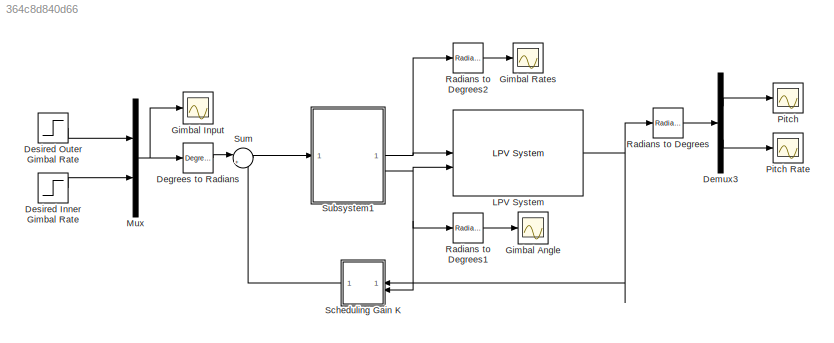
MODEL slx_364c8d840d66
KIND model
CONFIG AbsTol = auto
CONFIG EnableMultiTasking = off
CONFIG FixedStep = auto
CONFIG MaxStep = auto
CONFIG MinStep = auto
CONFIG RelTol = 1e-3
CONFIG SampleTimeConstraint = Unconstrained
CONFIG SolverName = VariableStepAuto
CONFIG StartTime = 0.0
CONFIG StopTime = tf
BLOCK [Reference] Degrees to Radians  REF=simulink_extras/Transformations/Degrees to
Radians
  SourceBlock = simulink_extras/Transformations/Degrees to\nRadians
  SourceType = DegreesToRadians
BLOCK [Demux] Demux3
  Outputs = 2
BLOCK [Step] Desired Inner Gimbal Rate
  After = 0
  SampleTime = 0
BLOCK [Step] Desired Outer Gimbal Rate
  After = 0
  SampleTime = 0
BLOCK [Scope] Gimbal Angle
  Floating = off
  NumInputPorts = 1
  ScopeSpecificationString = Simulink.scopes.TimeScopeBlockCfg('CurrentConfiguration', extmgr.ConfigurationSet(extmgr.Configuration('Core','General UI',true),extmgr.Configuration('Core','Source UI',true),extmgr.Configuration('Sources','WiredSimulink',true,'DataLoggingVariableName','gamma_output','DataLogging',true,'DataLoggingSaveFormat','StructureWithTime'),extmgr.Configuration('Visuals','Time Domain',true,'SerializedDisplay...<+1681ch>
BLOCK [Scope] Gimbal Input
  Floating = off
  NumInputPorts = 1
  ScopeSpecificationString = Simulink.scopes.TimeScopeBlockCfg('CurrentConfiguration', extmgr.ConfigurationSet(extmgr.Configuration('Core','General UI',true),extmgr.Configuration('Core','Source UI',true),extmgr.Configuration('Sources','WiredSimulink',true,'DataLoggingVariableName','Input','DataLogging',true,'DataLoggingSaveFormat','StructureWithTime'),extmgr.Configuration('Visuals','Time Domain',true,'SerializedDisplays',{str...<+1656ch>
BLOCK [Scope] Gimbal Rates
  Floating = off
  NumInputPorts = 1
  ScopeSpecificationString = Simulink.scopes.TimeScopeBlockCfg('CurrentConfiguration', extmgr.ConfigurationSet(extmgr.Configuration('Core','General UI',true),extmgr.Configuration('Core','Source UI',true),extmgr.Configuration('Sources','WiredSimulink',true,'DataLoggingVariableName','gamma_output_rates','DataLogging',true,'DataLoggingSaveFormat','StructureWithTime'),extmgr.Configuration('Visuals','Time Domain',true,'SerializedD...<+1680ch>
BLOCK [Reference] LPV System  REF=cstblocks/Linear Parameter Varying/LPV System
  SourceBlock = cstblocks/Linear Parameter Varying/LPV System
  SourceType = LPV Block
BLOCK [Mux] Mux
  DisplayOption = bar
  Inputs = 2
BLOCK [Scope] Pitch
  Floating = off
  NumInputPorts = 1
  ScopeSpecificationString = Simulink.scopes.TimeScopeBlockCfg('CurrentConfiguration', extmgr.ConfigurationSet(extmgr.Configuration('Core','General UI',true),extmgr.Configuration('Core','Source UI',true),extmgr.Configuration('Sources','WiredSimulink',true,'DataLoggingVariableName','Attitude_Angles','DataLogging',true,'DataLoggingSaveFormat','StructureWithTime'),extmgr.Configuration('Visuals','Time Domain',true,'SerializedDisp...<+1658ch>
BLOCK [Scope] Pitch Rate
  Floating = off
  NumInputPorts = 1
  ScopeSpecificationString = Simulink.scopes.TimeScopeBlockCfg('CurrentConfiguration', extmgr.ConfigurationSet(extmgr.Configuration('Core','General UI',true),extmgr.Configuration('Core','Source UI',true),extmgr.Configuration('Sources','WiredSimulink',true,'DataLoggingVariableName','Attitude_Angles_Rates','DataLogging',true,'DataLoggingSaveFormat','StructureWithTime'),extmgr.Configuration('Visuals','Time Domain',true,'Serializ...<+1644ch>
BLOCK [Reference] Radians to Degrees  REF=simulink_extras/Transformations/Radians
to Degrees
  SourceBlock = simulink_extras/Transformations/Radians\nto Degrees
  SourceType = RadiansToDegrees
BLOCK [Reference] Radians to Degrees1  REF=simulink_extras/Transformations/Radians
to Degrees
  SourceBlock = simulink_extras/Transformations/Radians\nto Degrees
  SourceType = RadiansToDegrees
BLOCK [Reference] Radians to Degrees2  REF=simulink_extras/Transformations/Radians
to Degrees
  SourceBlock = simulink_extras/Transformations/Radians\nto Degrees
  SourceType = RadiansToDegrees
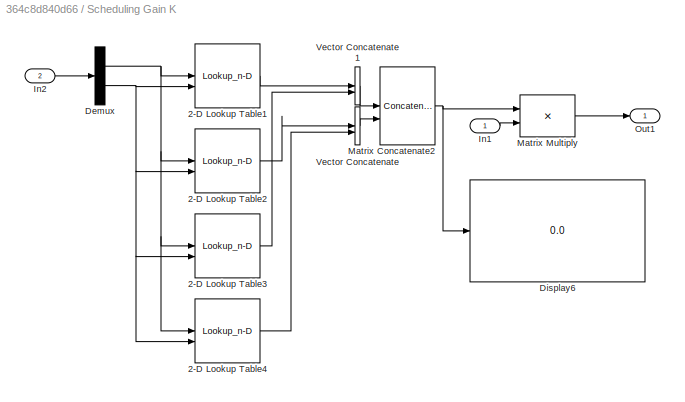
BLOCK [SubSystem] Scheduling Gain K
BLOCK [Lookup_n-D] Scheduling Gain K/2-D Lookup Table1
  BreakpointsForDimension1 = p1
  BreakpointsForDimension2 = p2
  InputPortMap = u0,u1
  InternalRulePriority = Speed
  RndMeth = Simplest
  Table = K1
BLOCK [Lookup_n-D] Scheduling Gain K/2-D Lookup Table2
  BreakpointsForDimension1 = p1
  BreakpointsForDimension2 = p2
  InputPortMap = u0,u1
  InternalRulePriority = Speed
  RndMeth = Simplest
  Table = K2
BLOCK [Lookup_n-D] Scheduling Gain K/2-D Lookup Table3
  BreakpointsForDimension1 = p1
  BreakpointsForDimension2 = p2
  InputPortMap = u0,u1
  InternalRulePriority = Speed
  RndMeth = Simplest
  Table = K3
BLOCK [Lookup_n-D] Scheduling Gain K/2-D Lookup Table4
  BreakpointsForDimension1 = p1
  BreakpointsForDimension2 = p2
  InputPortMap = u0,u1
  InternalRulePriority = Speed
  RndMeth = Simplest
  Table = K4
BLOCK [Demux] Scheduling Gain K/Demux
  Outputs = 2
BLOCK [Display] Scheduling Gain K/Display6
  Decimation = 1
BLOCK [Inport] Scheduling Gain K/In1
BLOCK [Inport] Scheduling Gain K/In2
  Port = 2
BLOCK [Concatenate] Scheduling Gain K/Matrix Concatenate2
  ConcatenateDimension = 2
  Mode = Multidimensional array
BLOCK [Product] Scheduling Gain K/Matrix Multiply
  Multiplication = Matrix(*)
BLOCK [Outport] Scheduling Gain K/Out1
BLOCK [Concatenate] Scheduling Gain K/Vector Concatenate
BLOCK [Concatenate] Scheduling Gain K/Vector Concatenate1
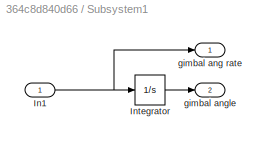
BLOCK [SubSystem] Subsystem1
BLOCK [Inport] Subsystem1/In1
BLOCK [Integrator] Subsystem1/Integrator
  InitialCondition = [0,0]
BLOCK [Outport] Subsystem1/gimbal ang rate
BLOCK [Outport] Subsystem1/gimbal angle
  Port = 2
BLOCK [Sum] Sum
  Inputs = |+-
LINE Degrees to Radians:1 -> Sum:1
LINE Demux3:1 -> Pitch:1
LINE Demux3:2 -> Pitch Rate:1
LINE Desired Inner Gimbal Rate:1 -> Mux:2
LINE Desired Outer Gimbal Rate:1 -> Mux:1
NET LPV System:1 -> Radians to Degrees:1, Scheduling Gain K:1
NET Mux:1 -> Degrees to Radians:1, Gimbal Input:1
LINE Radians to Degrees1:1 -> Gimbal Angle:1
LINE Radians to Degrees2:1 -> Gimbal Rates:1
LINE Radians to Degrees:1 -> Demux3:1
LINE Scheduling Gain K/2-D Lookup Table1:1 -> Scheduling Gain K/Vector Concatenate1:1
LINE Scheduling Gain K/2-D Lookup Table2:1 -> Scheduling Gain K/Vector Concatenate:1
LINE Scheduling Gain K/2-D Lookup Table3:1 -> Scheduling Gain K/Vector Concatenate1:2
LINE Scheduling Gain K/2-D Lookup Table4:1 -> Scheduling Gain K/Vector Concatenate:2
NET Scheduling Gain K/Demux:1 -> Scheduling Gain K/2-D Lookup Table1:1, Scheduling Gain K/2-D Lookup Table2:1, Scheduling Gain K/2-D Lookup Table3:1, Scheduling Gain K/2-D Lookup Table4:1
NET Scheduling Gain K/Demux:2 -> Scheduling Gain K/2-D Lookup Table1:2, Scheduling Gain K/2-D Lookup Table2:2, Scheduling Gain K/2-D Lookup Table3:2, Scheduling Gain K/2-D Lookup Table4:2
LINE Scheduling Gain K/In1:1 -> Scheduling Gain K/Matrix Multiply:2
LINE Scheduling Gain K/In2:1 -> Scheduling Gain K/Demux:1
NET Scheduling Gain K/Matrix Concatenate2:1 -> Scheduling Gain K/Display6:1, Scheduling Gain K/Matrix Multiply:1
LINE Scheduling Gain K/Matrix Multiply:1 -> Scheduling Gain K/Out1:1
LINE Scheduling Gain K/Vector Concatenate1:1 -> Scheduling Gain K/Matrix Concatenate2:1
LINE Scheduling Gain K/Vector Concatenate:1 -> Scheduling Gain K/Matrix Concatenate2:2
LINE Scheduling Gain K:1 -> Sum:2
NET Subsystem1/In1:1 -> Subsystem1/Integrator:1, Subsystem1/gimbal ang rate:1
LINE Subsystem1/Integrator:1 -> Subsystem1/gimbal angle:1
NET Subsystem1:1 -> LPV System:1, Radians to Degrees2:1
NET Subsystem1:2 -> LPV System:2, Radians to Degrees1:1, Scheduling Gain K:2
LINE Sum:1 -> Subsystem1:1
note: NET lines group one-source signal fan-out (src -> all destinations, sorted); 1:1 wires keep LINE
